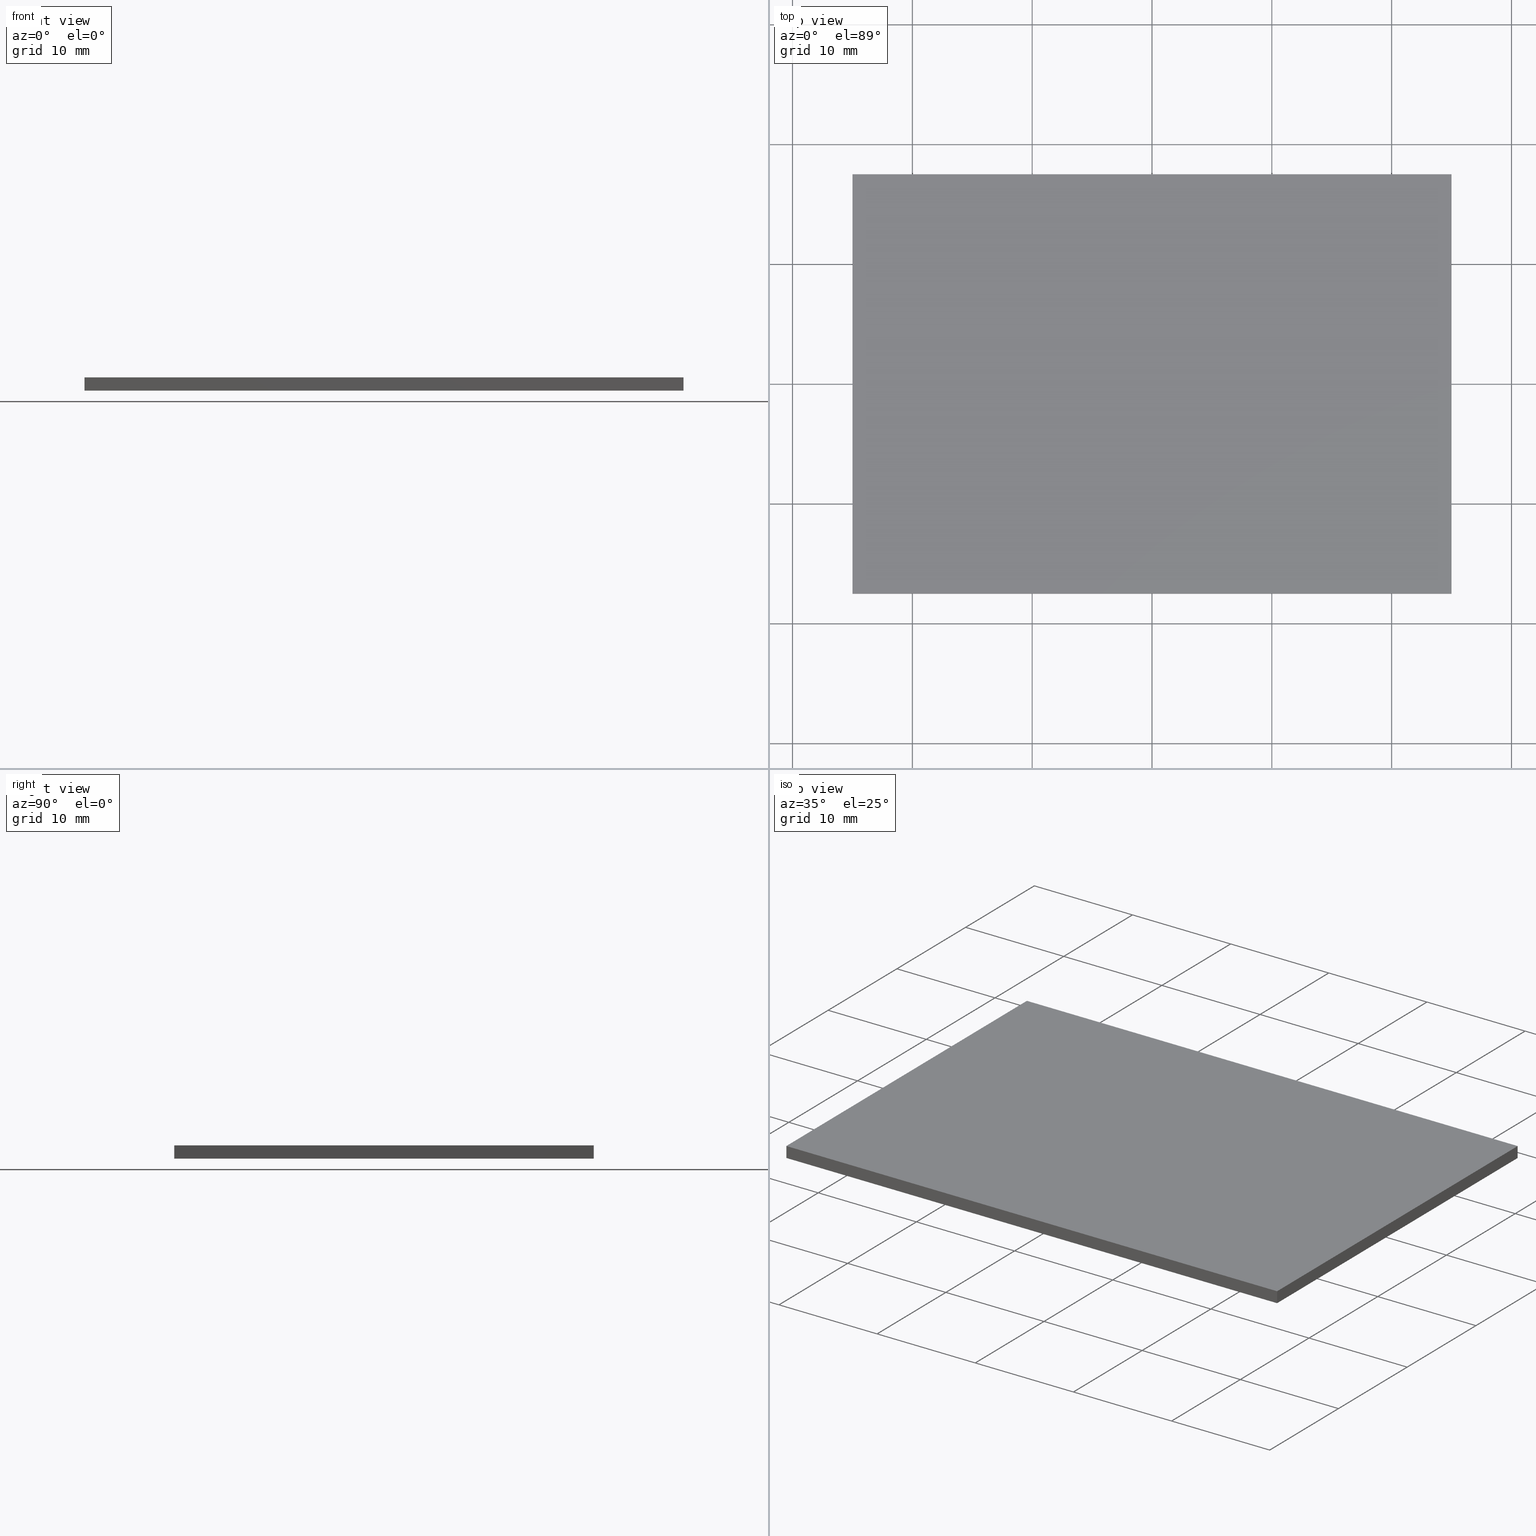
[diagram: canonical four-view strip — front | top / right | iso, engineering-drawing reading convention]
A machine part, canonical four-view strip (front | top / right | iso — engineering-drawing reading convention). The complete STEP part file that produces these views, byte-faithful:
ISO-10303-21;
HEADER;
FILE_DESCRIPTION (( 'STEP AP203' ),
    '1' );
FILE_NAME ('348509.STEP',
    '2019-07-31T07:47:47',
    ( '' ),
    ( '' ),
    'SwSTEP 2.0',
    'SolidWorks 2016',
    '' );
FILE_SCHEMA (( 'CONFIG_CONTROL_DESIGN' ));
ENDSEC;

DATA;
#1 = DIRECTION ( 'NONE',  ( 0.0000000000000000000, 1.000000000000000000, 0.0000000000000000000 ) ) ;
#2 = ORIENTED_EDGE ( 'NONE', *, *, #180, .T. ) ;
#3 = LOCAL_TIME ( 15, 47, 47.00000000000000000, #295 ) ;
#4 = ORIENTED_EDGE ( 'NONE', *, *, #75, .T. ) ;
#5 = EDGE_CURVE ( 'NONE', #208, #271, #179, .T. ) ;
#6 = LINE ( 'NONE', #218, #73 ) ;
#7 = CARTESIAN_POINT ( 'NONE',  ( -25.00000000000000400, 17.50000000000000000, 1.100000000000000100 ) ) ;
#8 = DIRECTION ( 'NONE',  ( 0.0000000000000000000, -0.0000000000000000000, -1.000000000000000000 ) ) ;
#9 = COORDINATED_UNIVERSAL_TIME_OFFSET ( 8, 0, .AHEAD. ) ;
#10 = LINE ( 'NONE', #164, #262 ) ;
#11 = DIRECTION ( 'NONE',  ( 0.0000000000000000000, 0.0000000000000000000, 1.000000000000000000 ) ) ;
#12 = CARTESIAN_POINT ( 'NONE',  ( -25.00000000000000400, -17.50000000000000000, 0.0000000000000000000 ) ) ;
#13 = ORIENTED_EDGE ( 'NONE', *, *, #41, .T. ) ;
#14 = VERTEX_POINT ( 'NONE', #274 ) ;
#15 = PERSON_AND_ORGANIZATION_ROLE ( 'creator' ) ;
#16 = APPROVAL_STATUS ( 'not_yet_approved' ) ;
#17 = PERSON_AND_ORGANIZATION ( #85, #36 ) ;
#18 = APPLICATION_CONTEXT ( 'configuration controlled 3d designs of mechanical parts and assemblies' ) ;
#19 = ADVANCED_FACE ( 'NONE', ( #185 ), #156, .F. ) ;
#20 = CC_DESIGN_PERSON_AND_ORGANIZATION_ASSIGNMENT ( #261, #121, ( #81 ) ) ;
#21 = EDGE_LOOP ( 'NONE', ( #281, #264, #254, #4 ) ) ;
#22 = CC_DESIGN_PERSON_AND_ORGANIZATION_ASSIGNMENT ( #157, #234, ( #257 ) ) ;
#23 = CALENDAR_DATE ( 2019, 31, 7 ) ;
#24 = AXIS2_PLACEMENT_3D ( 'NONE', #88, #53, #33 ) ;
#25 = PERSON_AND_ORGANIZATION ( #85, #36 ) ;
#26 = VECTOR ( 'NONE', #76, 1000.000000000000000 ) ;
#27 = MANIFOLD_SOLID_BREP ( '͹̨-����1', #28 ) ;
#28 = CLOSED_SHELL ( 'NONE', ( #128, #239, #237, #19, #130, #293 ) ) ;
#29 = PERSON_AND_ORGANIZATION ( #85, #36 ) ;
#30 = EDGE_CURVE ( 'NONE', #271, #263, #290, .T. ) ;
#31 = PERSON_AND_ORGANIZATION ( #85, #36 ) ;
#32 = DIRECTION ( 'NONE',  ( -1.000000000000000000, -0.0000000000000000000, -0.0000000000000000000 ) ) ;
#33 = DIRECTION ( 'NONE',  ( -1.000000000000000000, 0.0000000000000000000, -0.0000000000000000000 ) ) ;
#34 = CARTESIAN_POINT ( 'NONE',  ( 24.99999999999999600, -17.50000000000000000, 1.100000000000000100 ) ) ;
#35 = PERSON_AND_ORGANIZATION ( #85, #36 ) ;
#36 = ORGANIZATION ( 'δָ��', 'δָ��', '' ) ;
#37 = ORIENTED_EDGE ( 'NONE', *, *, #30, .T. ) ;
#38 = FACE_OUTER_BOUND ( 'NONE', #289, .T. ) ;
#39 = CC_DESIGN_DATE_AND_TIME_ASSIGNMENT ( #47, #233, ( #81 ) ) ;
#40 = MECHANICAL_CONTEXT ( 'NONE', #18, 'mechanical' ) ;
#41 = EDGE_CURVE ( 'NONE', #315, #271, #117, .T. ) ;
#42 = COORDINATED_UNIVERSAL_TIME_OFFSET ( 8, 0, .AHEAD. ) ;
#43 = DIRECTION ( 'NONE',  ( 0.0000000000000000000, 0.0000000000000000000, 1.000000000000000000 ) ) ;
#44 = DIRECTION ( 'NONE',  ( 1.000000000000000000, 0.0000000000000000000, 0.0000000000000000000 ) ) ;
#45 = DATE_AND_TIME ( #115, #61 ) ;
#46 = CC_DESIGN_PERSON_AND_ORGANIZATION_ASSIGNMENT ( #152, #15, ( #217 ) ) ;
#47 = DATE_AND_TIME ( #184, #189 ) ;
#48 = CC_DESIGN_APPROVAL ( #94, ( #177 ) ) ;
#49 = PRODUCT_DEFINITION_SHAPE ( 'NONE', 'NONE',  #177 ) ;
#50 = LOCAL_TIME ( 15, 47, 47.00000000000000000, #126 ) ;
#51 = VERTEX_POINT ( 'NONE', #74 ) ;
#52 = LOCAL_TIME ( 15, 47, 47.00000000000000000, #42 ) ;
#53 = DIRECTION ( 'NONE',  ( 0.0000000000000000000, 0.0000000000000000000, -1.000000000000000000 ) ) ;
#54 = CALENDAR_DATE ( 2019, 31, 7 ) ;
#55 = EDGE_CURVE ( 'NONE', #236, #263, #294, .T. ) ;
#56 = PLANE ( 'NONE',  #24 ) ;
#57 = CARTESIAN_POINT ( 'NONE',  ( 24.99999999999999600, 17.50000000000000000, 1.100000000000000100 ) ) ;
#58 = DATE_TIME_ROLE ( 'classification_date' ) ;
#59 = CC_DESIGN_DATE_AND_TIME_ASSIGNMENT ( #176, #58, ( #266 ) ) ;
#60 = MECHANICAL_CONTEXT ( 'NONE', #282, 'mechanical' ) ;
#61 = LOCAL_TIME ( 15, 47, 47.00000000000000000, #222 ) ;
#62 = CC_DESIGN_PERSON_AND_ORGANIZATION_ASSIGNMENT ( #302, #256, ( #291 ) ) ;
#63 = PERSON_AND_ORGANIZATION_ROLE ( 'classification_officer' ) ;
#64 = APPROVAL_STATUS ( 'not_yet_approved' ) ;
#65 = SECURITY_CLASSIFICATION_LEVEL ( 'unclassified' ) ;
#66 = PRODUCT_RELATED_PRODUCT_CATEGORY ( 'detail', '', ( #183 ) ) ;
#67 = PERSON_AND_ORGANIZATION ( #85, #36 ) ;
#68 = VECTOR ( 'NONE', #32, 1000.000000000000000 ) ;
#69 = ORIENTED_EDGE ( 'NONE', *, *, #163, .F. ) ;
#70 = ORIENTED_EDGE ( 'NONE', *, *, #100, .T. ) ;
#71 = VECTOR ( 'NONE', #241, 1000.000000000000000 ) ;
#72 = APPROVAL_PERSON_ORGANIZATION ( #67, #182, #307 ) ;
#73 = VECTOR ( 'NONE', #297, 1000.000000000000000 ) ;
#74 = CARTESIAN_POINT ( 'NONE',  ( -25.00000000000000400, -17.50000000000000000, 1.100000000000000100 ) ) ;
#75 = EDGE_CURVE ( 'NONE', #51, #154, #6, .T. ) ;
#76 = DIRECTION ( 'NONE',  ( -0.0000000000000000000, -0.0000000000000000000, -1.000000000000000000 ) ) ;
#77 = ORIENTED_EDGE ( 'NONE', *, *, #100, .F. ) ;
#78 = CC_DESIGN_APPROVAL ( #273, ( #257 ) ) ;
#79 = CARTESIAN_POINT ( 'NONE',  ( -25.00000000000000400, -17.50000000000000000, 1.100000000000000100 ) ) ;
#80 = CARTESIAN_POINT ( 'NONE',  ( 24.99999999999999600, 17.50000000000000000, 1.100000000000000100 ) ) ;
#81 = SECURITY_CLASSIFICATION ( '', '', #65 ) ;
#82 = CARTESIAN_POINT ( 'NONE',  ( 24.99999999999999600, -17.50000000000000000, 1.100000000000000100 ) ) ;
#83 = APPROVAL_DATE_TIME ( #198, #268 ) ;
#84 = CARTESIAN_POINT ( 'NONE',  ( -25.00000000000000400, -17.50000000000000000, 0.0000000000000000000 ) ) ;
#85 = PERSON ( 'δָ��', 'δָ��', 'δָ��', ('δָ��'), ('δָ��'), ('δָ��') ) ;
#86 = VECTOR ( 'NONE', #226, 1000.000000000000000 ) ;
#87 = LINE ( 'NONE', #84, #148 ) ;
#88 = CARTESIAN_POINT ( 'NONE',  ( 0.0000000000000000000, 0.0000000000000000000, 1.100000000000000100 ) ) ;
#89 = CC_DESIGN_PERSON_AND_ORGANIZATION_ASSIGNMENT ( #135, #259, ( #177 ) ) ;
#90 = ADVANCED_BREP_SHAPE_REPRESENTATION ( '348509', ( #27, #265 ), #155 ) ;
#91 = DIRECTION ( 'NONE',  ( 1.000000000000000000, 0.0000000000000000000, 0.0000000000000000000 ) ) ;
#92 = APPROVAL_PERSON_ORGANIZATION ( #194, #268, #125 ) ;
#93 = APPROVAL_STATUS ( 'not_yet_approved' ) ;
#94 = APPROVAL ( #171, 'δָ��' ) ;
#95 = APPLICATION_CONTEXT ( 'configuration controlled 3d designs of mechanical parts and assemblies' ) ;
#96 = APPROVAL_PERSON_ORGANIZATION ( #35, #94, #209 ) ;
#97 = CC_DESIGN_PERSON_AND_ORGANIZATION_ASSIGNMENT ( #25, #284, ( #183 ) ) ;
#98 = APPROVAL_STATUS ( 'not_yet_approved' ) ;
#99 = DESIGN_CONTEXT ( 'detailed design', #95, 'design' ) ;
#100 = EDGE_CURVE ( 'NONE', #154, #315, #160, .T. ) ;
#101 = ORIENTED_EDGE ( 'NONE', *, *, #30, .F. ) ;
#102 = EDGE_LOOP ( 'NONE', ( #13, #134, #215, #70 ) ) ;
#103 = CC_DESIGN_APPROVAL ( #243, ( #81 ) ) ;
#104 = COORDINATED_UNIVERSAL_TIME_OFFSET ( 8, 0, .AHEAD. ) ;
#105 = CC_DESIGN_DATE_AND_TIME_ASSIGNMENT ( #235, #230, ( #177 ) ) ;
#106 = ORIENTED_EDGE ( 'NONE', *, *, #133, .F. ) ;
#107 = DIRECTION ( 'NONE',  ( -0.0000000000000000000, -0.0000000000000000000, -1.000000000000000000 ) ) ;
#108 = AXIS2_PLACEMENT_3D ( 'NONE', #79, #242, #200 ) ;
#109 = CARTESIAN_POINT ( 'NONE',  ( 24.99999999999999600, -17.50000000000000000, 0.0000000000000000000 ) ) ;
#110 = CARTESIAN_POINT ( 'NONE',  ( 24.99999999999999600, -17.50000000000000000, 1.100000000000000100 ) ) ;
#111 = CC_DESIGN_SECURITY_CLASSIFICATION ( #266, ( #257 ) ) ;
#112 = CALENDAR_DATE ( 2019, 31, 7 ) ;
#113 = PLANE ( 'NONE',  #270 ) ;
#114 = CARTESIAN_POINT ( 'NONE',  ( 24.99999999999999600, -17.50000000000000000, 1.100000000000000100 ) ) ;
#115 = CALENDAR_DATE ( 2019, 31, 7 ) ;
#116 = DIRECTION ( 'NONE',  ( -1.000000000000000000, 0.0000000000000000000, 0.0000000000000000000 ) ) ;
#117 = LINE ( 'NONE', #109, #168 ) ;
#118 = LINE ( 'NONE', #249, #220 ) ;
#119 = VECTOR ( 'NONE', #107, 1000.000000000000000 ) ;
#120 = DIRECTION ( 'NONE',  ( 0.0000000000000000000, -1.000000000000000000, 0.0000000000000000000 ) ) ;
#121 = PERSON_AND_ORGANIZATION_ROLE ( 'classification_officer' ) ;
#122 = APPLICATION_CONTEXT ( 'configuration controlled 3d designs of mechanical parts and assemblies' ) ;
#123 = APPROVAL_DATE_TIME ( #129, #182 ) ;
#124 = CC_DESIGN_SECURITY_CLASSIFICATION ( #81, ( #291 ) ) ;
#125 = APPROVAL_ROLE ( '' ) ;
#126 = COORDINATED_UNIVERSAL_TIME_OFFSET ( 8, 0, .AHEAD. ) ;
#127 = CC_DESIGN_PERSON_AND_ORGANIZATION_ASSIGNMENT ( #173, #214, ( #257 ) ) ;
#128 = ADVANCED_FACE ( 'NONE', ( #172 ), #205, .F. ) ;
#129 = DATE_AND_TIME ( #193, #285 ) ;
#130 = ADVANCED_FACE ( 'NONE', ( #277 ), #56, .F. ) ;
#131 = CALENDAR_DATE ( 2019, 31, 7 ) ;
#132 = EDGE_LOOP ( 'NONE', ( #153, #303, #106, #101 ) ) ;
#133 = EDGE_CURVE ( 'NONE', #263, #14, #87, .T. ) ;
#134 = ORIENTED_EDGE ( 'NONE', *, *, #5, .F. ) ;
#135 = PERSON_AND_ORGANIZATION ( #85, #36 ) ;
#136 = PRODUCT_RELATED_PRODUCT_CATEGORY ( 'detail', '', ( #137 ) ) ;
#137 = PRODUCT ( '348509', '348509', '', ( #40 ) ) ;
#138 = CARTESIAN_POINT ( 'NONE',  ( 0.0000000000000000000, 0.0000000000000000000, 0.0000000000000000000 ) ) ;
#139 = CARTESIAN_POINT ( 'NONE',  ( -25.00000000000000400, 17.50000000000000000, 1.100000000000000100 ) ) ;
#140 = LOCAL_TIME ( 15, 47, 47.00000000000000000, #298 ) ;
#141 = PLANE ( 'NONE',  #143 ) ;
#142 = LINE ( 'NONE', #278, #68 ) ;
#143 = AXIS2_PLACEMENT_3D ( 'NONE', #224, #91, #252 ) ;
#144 = ORIENTED_EDGE ( 'NONE', *, *, #75, .F. ) ;
#145 = SECURITY_CLASSIFICATION_LEVEL ( 'unclassified' ) ;
#146 = APPROVAL_ROLE ( '' ) ;
#147 = LOCAL_TIME ( 15, 47, 47.00000000000000000, #9 ) ;
#148 = VECTOR ( 'NONE', #299, 1000.000000000000000 ) ;
#149 = LOCAL_TIME ( 15, 47, 47.00000000000000000, #272 ) ;
#150 = ORIENTED_EDGE ( 'NONE', *, *, #55, .T. ) ;
#151 = CC_DESIGN_APPROVAL ( #187, ( #266 ) ) ;
#152 = PERSON_AND_ORGANIZATION ( #85, #36 ) ;
#153 = ORIENTED_EDGE ( 'NONE', *, *, #41, .F. ) ;
#154 = VERTEX_POINT ( 'NONE', #82 ) ;
#155 =( GEOMETRIC_REPRESENTATION_CONTEXT ( 3 ) GLOBAL_UNCERTAINTY_ASSIGNED_CONTEXT ( ( #207 ) ) GLOBAL_UNIT_ASSIGNED_CONTEXT ( ( #247, #300, #161 ) ) REPRESENTATION_CONTEXT ( 'NONE', 'WORKASPACE' ) );
#156 = PLANE ( 'NONE',  #108 ) ;
#157 = PERSON_AND_ORGANIZATION ( #85, #36 ) ;
#158 = DIRECTION ( 'NONE',  ( -0.0000000000000000000, -1.000000000000000000, -0.0000000000000000000 ) ) ;
#159 = SHAPE_DEFINITION_REPRESENTATION ( #49, #90 ) ;
#160 = LINE ( 'NONE', #110, #26 ) ;
#161 =( NAMED_UNIT ( * ) SI_UNIT ( $, .STERADIAN. ) SOLID_ANGLE_UNIT ( ) );
#162 = AXIS2_PLACEMENT_3D ( 'NONE', #114, #116, #11 ) ;
#163 = EDGE_CURVE ( 'NONE', #51, #14, #10, .T. ) ;
#164 = CARTESIAN_POINT ( 'NONE',  ( -25.00000000000000400, -17.50000000000000000, 1.100000000000000100 ) ) ;
#165 = DIRECTION ( 'NONE',  ( 0.0000000000000000000, 0.0000000000000000000, -1.000000000000000000 ) ) ;
#166 = FACE_OUTER_BOUND ( 'NONE', #132, .T. ) ;
#167 = DIRECTION ( 'NONE',  ( 1.000000000000000000, 0.0000000000000000000, 0.0000000000000000000 ) ) ;
#168 = VECTOR ( 'NONE', #1, 1000.000000000000000 ) ;
#169 = EDGE_CURVE ( 'NONE', #208, #236, #142, .T. ) ;
#170 = DIRECTION ( 'NONE',  ( 0.0000000000000000000, 0.0000000000000000000, 1.000000000000000000 ) ) ;
#171 = APPROVAL_STATUS ( 'not_yet_approved' ) ;
#172 = FACE_OUTER_BOUND ( 'NONE', #102, .T. ) ;
#173 = PERSON_AND_ORGANIZATION ( #85, #36 ) ;
#174 = VECTOR ( 'NONE', #269, 1000.000000000000000 ) ;
#175 = AXIS2_PLACEMENT_3D ( 'NONE', #276, #43, #44 ) ;
#176 = DATE_AND_TIME ( #181, #3 ) ;
#177 = PRODUCT_DEFINITION ( 'δ֪', '', #257, #191 ) ;
#178 = APPROVAL_PERSON_ORGANIZATION ( #31, #273, #310 ) ;
#179 = LINE ( 'NONE', #80, #119 ) ;
#180 = EDGE_CURVE ( 'NONE', #14, #315, #186, .T. ) ;
#181 = CALENDAR_DATE ( 2019, 31, 7 ) ;
#182 = APPROVAL ( #64, 'δָ��' ) ;
#183 = PRODUCT ( '348509', '348509', '', ( #60 ) ) ;
#184 = CALENDAR_DATE ( 2019, 31, 7 ) ;
#185 = FACE_OUTER_BOUND ( 'NONE', #196, .T. ) ;
#186 = LINE ( 'NONE', #12, #86 ) ;
#187 = APPROVAL ( #98, 'δָ��' ) ;
#188 = APPLICATION_PROTOCOL_DEFINITION ( 'international standard', 'config_control_design', 1994, #18 ) ;
#189 = LOCAL_TIME ( 15, 47, 47.00000000000000000, #314 ) ;
#190 = DATE_TIME_ROLE ( 'creation_date' ) ;
#191 = DESIGN_CONTEXT ( 'detailed design', #122, 'design' ) ;
#192 = AXIS2_PLACEMENT_3D ( 'NONE', #139, #120, #8 ) ;
#193 = CALENDAR_DATE ( 2019, 31, 7 ) ;
#194 = PERSON_AND_ORGANIZATION ( #85, #36 ) ;
#195 = ORIENTED_EDGE ( 'NONE', *, *, #306, .F. ) ;
#196 = EDGE_LOOP ( 'NONE', ( #2, #77, #144, #210 ) ) ;
#197 = CC_DESIGN_PERSON_AND_ORGANIZATION_ASSIGNMENT ( #275, #63, ( #266 ) ) ;
#198 = DATE_AND_TIME ( #112, #149 ) ;
#199 = COORDINATED_UNIVERSAL_TIME_OFFSET ( 8, 0, .AHEAD. ) ;
#200 = DIRECTION ( 'NONE',  ( 0.0000000000000000000, -0.0000000000000000000, 1.000000000000000000 ) ) ;
#201 = ORIENTED_EDGE ( 'NONE', *, *, #5, .T. ) ;
#202 = ORIENTED_EDGE ( 'NONE', *, *, #133, .T. ) ;
#203 = PERSON_AND_ORGANIZATION ( #85, #36 ) ;
#204 = DIRECTION ( 'NONE',  ( -0.0000000000000000000, -0.0000000000000000000, -1.000000000000000000 ) ) ;
#205 = PLANE ( 'NONE',  #162 ) ;
#206 = DIRECTION ( 'NONE',  ( 0.0000000000000000000, 1.000000000000000000, 0.0000000000000000000 ) ) ;
#207 = UNCERTAINTY_MEASURE_WITH_UNIT (LENGTH_MEASURE( 1.000000000000000100E-005 ), #247, 'distance_accuracy_value', 'NONE');
#208 = VERTEX_POINT ( 'NONE', #57 ) ;
#209 = APPROVAL_ROLE ( '' ) ;
#210 = ORIENTED_EDGE ( 'NONE', *, *, #163, .T. ) ;
#211 = APPLICATION_PROTOCOL_DEFINITION ( 'international standard', 'config_control_design', 1994, #282 ) ;
#212 = PERSON_AND_ORGANIZATION_ROLE ( 'design_owner' ) ;
#213 = CALENDAR_DATE ( 2019, 31, 7 ) ;
#214 = PERSON_AND_ORGANIZATION_ROLE ( 'creator' ) ;
#215 = ORIENTED_EDGE ( 'NONE', *, *, #219, .F. ) ;
#216 = APPROVAL_DATE_TIME ( #313, #243 ) ;
#217 = PRODUCT_DEFINITION ( 'δ֪', '', #291, #99 ) ;
#218 = CARTESIAN_POINT ( 'NONE',  ( -25.00000000000000400, -17.50000000000000000, 1.100000000000000100 ) ) ;
#219 = EDGE_CURVE ( 'NONE', #154, #208, #287, .T. ) ;
#220 = VECTOR ( 'NONE', #158, 1000.000000000000000 ) ;
#221 = ORIENTED_EDGE ( 'NONE', *, *, #169, .F. ) ;
#222 = COORDINATED_UNIVERSAL_TIME_OFFSET ( 8, 0, .AHEAD. ) ;
#223 = CARTESIAN_POINT ( 'NONE',  ( 24.99999999999999600, 17.50000000000000000, 0.0000000000000000000 ) ) ;
#224 = CARTESIAN_POINT ( 'NONE',  ( -25.00000000000000400, -17.50000000000000000, 1.100000000000000100 ) ) ;
#225 = PLANE ( 'NONE',  #192 ) ;
#226 = DIRECTION ( 'NONE',  ( 1.000000000000000000, 0.0000000000000000000, 0.0000000000000000000 ) ) ;
#227 = PERSON_AND_ORGANIZATION ( #85, #36 ) ;
#228 = CARTESIAN_POINT ( 'NONE',  ( -25.00000000000000400, 17.50000000000000000, 0.0000000000000000000 ) ) ;
#229 = FACE_OUTER_BOUND ( 'NONE', #279, .T. ) ;
#230 = DATE_TIME_ROLE ( 'creation_date' ) ;
#231 = CC_DESIGN_DATE_AND_TIME_ASSIGNMENT ( #244, #190, ( #217 ) ) ;
#232 = APPROVAL_DATE_TIME ( #45, #273 ) ;
#233 = DATE_TIME_ROLE ( 'classification_date' ) ;
#234 = PERSON_AND_ORGANIZATION_ROLE ( 'design_supplier' ) ;
#235 = DATE_AND_TIME ( #23, #50 ) ;
#236 = VERTEX_POINT ( 'NONE', #301 ) ;
#237 = ADVANCED_FACE ( 'NONE', ( #38 ), #141, .F. ) ;
#238 = DATE_AND_TIME ( #308, #52 ) ;
#239 = ADVANCED_FACE ( 'NONE', ( #229 ), #225, .F. ) ;
#240 = APPROVAL_DATE_TIME ( #312, #94 ) ;
#241 = DIRECTION ( 'NONE',  ( -0.0000000000000000000, -0.0000000000000000000, -1.000000000000000000 ) ) ;
#242 = DIRECTION ( 'NONE',  ( 0.0000000000000000000, 1.000000000000000000, 0.0000000000000000000 ) ) ;
#243 = APPROVAL ( #286, 'δָ��' ) ;
#244 = DATE_AND_TIME ( #213, #147 ) ;
#245 = VECTOR ( 'NONE', #206, 1000.000000000000000 ) ;
#246 = DIRECTION ( 'NONE',  ( -1.000000000000000000, 0.0000000000000000000, -0.0000000000000000000 ) ) ;
#247 =( LENGTH_UNIT ( ) NAMED_UNIT ( * ) SI_UNIT ( .MILLI., .METRE. ) );
#248 = APPROVAL_PERSON_ORGANIZATION ( #17, #243, #146 ) ;
#249 = CARTESIAN_POINT ( 'NONE',  ( -25.00000000000000400, -17.50000000000000000, 1.100000000000000100 ) ) ;
#250 = ORIENTED_EDGE ( 'NONE', *, *, #55, .F. ) ;
#251 = CC_DESIGN_APPROVAL ( #268, ( #217 ) ) ;
#252 = DIRECTION ( 'NONE',  ( 0.0000000000000000000, 0.0000000000000000000, -1.000000000000000000 ) ) ;
#253 = PERSON_AND_ORGANIZATION_ROLE ( 'creator' ) ;
#254 = ORIENTED_EDGE ( 'NONE', *, *, #306, .T. ) ;
#255 = LOCAL_TIME ( 15, 47, 47.00000000000000000, #199 ) ;
#256 = PERSON_AND_ORGANIZATION_ROLE ( 'design_supplier' ) ;
#257 = PRODUCT_DEFINITION_FORMATION_WITH_SPECIFIED_SOURCE ( '�κ�', '', #183, .NOT_KNOWN. ) ;
#258 = APPLICATION_PROTOCOL_DEFINITION ( 'international standard', 'config_control_design', 1994, #122 ) ;
#259 = PERSON_AND_ORGANIZATION_ROLE ( 'creator' ) ;
#260 = APPROVAL_ROLE ( '' ) ;
#261 = PERSON_AND_ORGANIZATION ( #85, #36 ) ;
#262 = VECTOR ( 'NONE', #204, 1000.000000000000000 ) ;
#263 = VERTEX_POINT ( 'NONE', #228 ) ;
#264 = ORIENTED_EDGE ( 'NONE', *, *, #169, .T. ) ;
#265 = AXIS2_PLACEMENT_3D ( 'NONE', #138, #170, #167 ) ;
#266 = SECURITY_CLASSIFICATION ( '', '', #145 ) ;
#267 = APPROVAL_PERSON_ORGANIZATION ( #227, #187, #260 ) ;
#268 = APPROVAL ( #93, 'δָ��' ) ;
#269 = DIRECTION ( 'NONE',  ( -1.000000000000000000, -0.0000000000000000000, -0.0000000000000000000 ) ) ;
#270 = AXIS2_PLACEMENT_3D ( 'NONE', #305, #165, #246 ) ;
#271 = VERTEX_POINT ( 'NONE', #223 ) ;
#272 = COORDINATED_UNIVERSAL_TIME_OFFSET ( 8, 0, .AHEAD. ) ;
#273 = APPROVAL ( #16, 'δָ��' ) ;
#274 = CARTESIAN_POINT ( 'NONE',  ( -25.00000000000000400, -17.50000000000000000, 0.0000000000000000000 ) ) ;
#275 = PERSON_AND_ORGANIZATION ( #85, #36 ) ;
#276 = CARTESIAN_POINT ( 'NONE',  ( 0.0000000000000000000, 0.0000000000000000000, 0.0000000000000000000 ) ) ;
#277 = FACE_OUTER_BOUND ( 'NONE', #21, .T. ) ;
#278 = CARTESIAN_POINT ( 'NONE',  ( -25.00000000000000400, 17.50000000000000000, 1.100000000000000100 ) ) ;
#279 = EDGE_LOOP ( 'NONE', ( #37, #250, #221, #201 ) ) ;
#280 = CARTESIAN_POINT ( 'NONE',  ( 24.99999999999999600, -17.50000000000000000, 0.0000000000000000000 ) ) ;
#281 = ORIENTED_EDGE ( 'NONE', *, *, #219, .T. ) ;
#282 = APPLICATION_CONTEXT ( 'configuration controlled 3d designs of mechanical parts and assemblies' ) ;
#283 = CC_DESIGN_PERSON_AND_ORGANIZATION_ASSIGNMENT ( #203, #253, ( #291 ) ) ;
#284 = PERSON_AND_ORGANIZATION_ROLE ( 'design_owner' ) ;
#285 = LOCAL_TIME ( 15, 47, 47.00000000000000000, #104 ) ;
#286 = APPROVAL_STATUS ( 'not_yet_approved' ) ;
#287 = LINE ( 'NONE', #34, #245 ) ;
#288 = CC_DESIGN_PERSON_AND_ORGANIZATION_ASSIGNMENT ( #29, #212, ( #137 ) ) ;
#289 = EDGE_LOOP ( 'NONE', ( #202, #69, #195, #150 ) ) ;
#290 = LINE ( 'NONE', #296, #174 ) ;
#291 = PRODUCT_DEFINITION_FORMATION_WITH_SPECIFIED_SOURCE ( '�κ�', '', #137, .NOT_KNOWN. ) ;
#292 = APPROVAL_DATE_TIME ( #238, #187 ) ;
#293 = ADVANCED_FACE ( 'NONE', ( #166 ), #113, .T. ) ;
#294 = LINE ( 'NONE', #7, #71 ) ;
#295 = COORDINATED_UNIVERSAL_TIME_OFFSET ( 8, 0, .AHEAD. ) ;
#296 = CARTESIAN_POINT ( 'NONE',  ( -25.00000000000000400, 17.50000000000000000, 0.0000000000000000000 ) ) ;
#297 = DIRECTION ( 'NONE',  ( 1.000000000000000000, 0.0000000000000000000, 0.0000000000000000000 ) ) ;
#298 = COORDINATED_UNIVERSAL_TIME_OFFSET ( 8, 0, .AHEAD. ) ;
#299 = DIRECTION ( 'NONE',  ( -0.0000000000000000000, -1.000000000000000000, -0.0000000000000000000 ) ) ;
#300 =( NAMED_UNIT ( * ) PLANE_ANGLE_UNIT ( ) SI_UNIT ( $, .RADIAN. ) );
#301 = CARTESIAN_POINT ( 'NONE',  ( -25.00000000000000400, 17.50000000000000000, 1.100000000000000100 ) ) ;
#302 = PERSON_AND_ORGANIZATION ( #85, #36 ) ;
#303 = ORIENTED_EDGE ( 'NONE', *, *, #180, .F. ) ;
#304 = CC_DESIGN_APPROVAL ( #182, ( #291 ) ) ;
#305 = CARTESIAN_POINT ( 'NONE',  ( 0.0000000000000000000, 0.0000000000000000000, 0.0000000000000000000 ) ) ;
#306 = EDGE_CURVE ( 'NONE', #236, #51, #118, .T. ) ;
#307 = APPROVAL_ROLE ( '' ) ;
#308 = CALENDAR_DATE ( 2019, 31, 7 ) ;
#309 = APPLICATION_PROTOCOL_DEFINITION ( 'international standard', 'config_control_design', 1994, #95 ) ;
#310 = APPROVAL_ROLE ( '' ) ;
#311 = PRODUCT_DEFINITION_SHAPE ( 'NONE', 'NONE',  #217 ) ;
#312 = DATE_AND_TIME ( #54, #140 ) ;
#313 = DATE_AND_TIME ( #131, #255 ) ;
#314 = COORDINATED_UNIVERSAL_TIME_OFFSET ( 8, 0, .AHEAD. ) ;
#315 = VERTEX_POINT ( 'NONE', #280 ) ;
ENDSEC;
END-ISO-10303-21;
